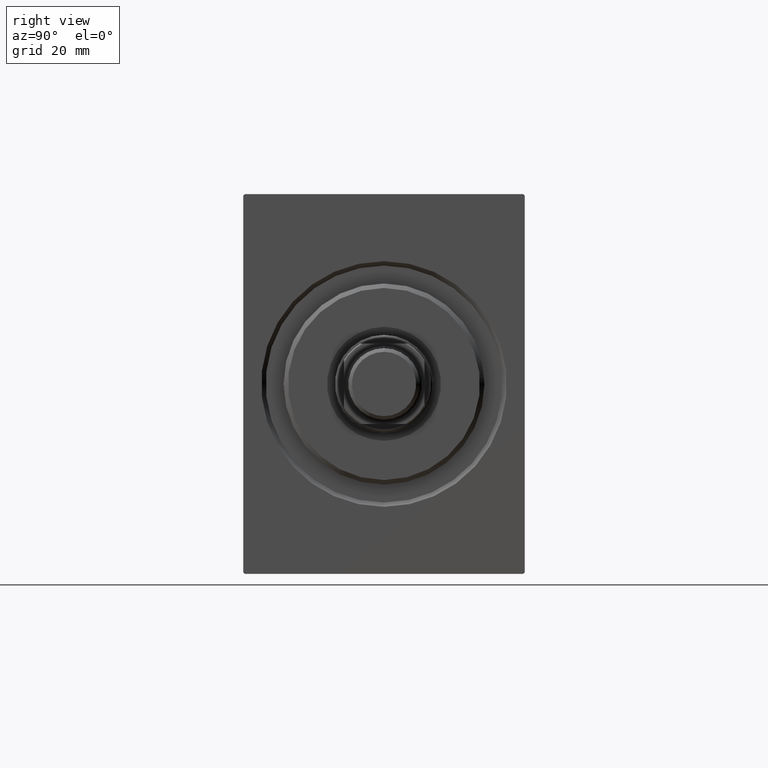
[diagram: clean part render]
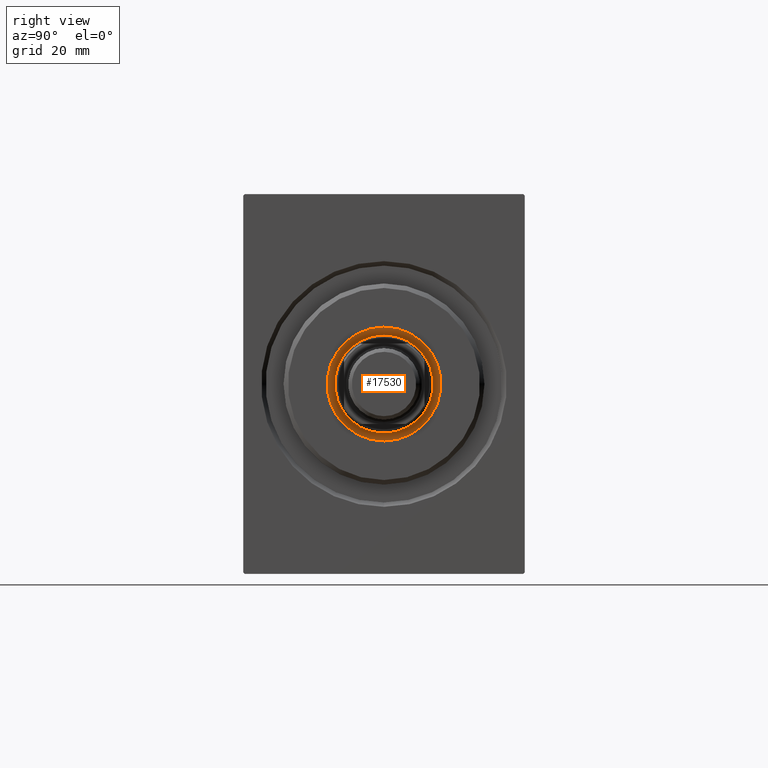
[diagram: same view with one face highlighted and labeled with its STEP entity id]
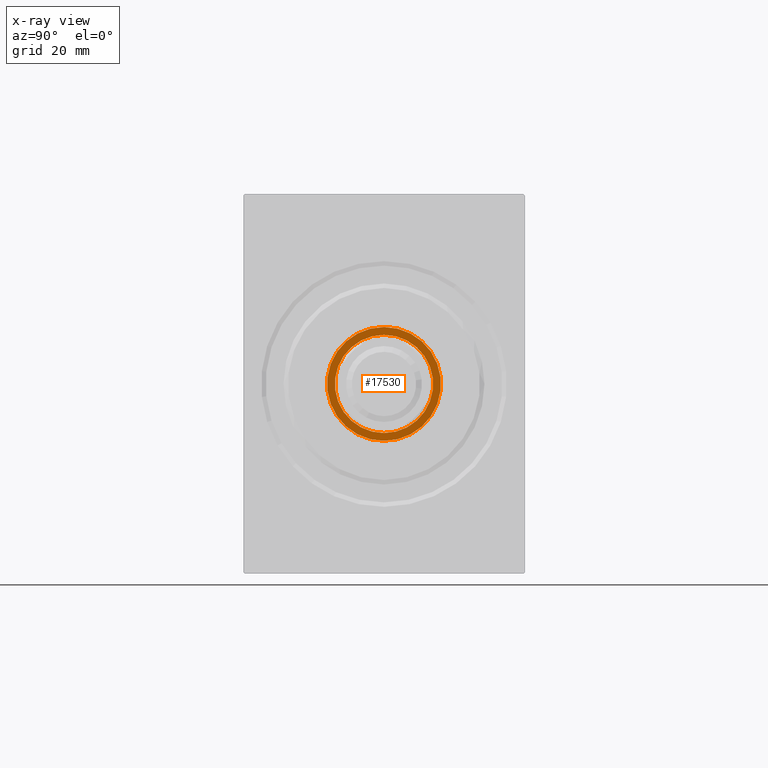
[diagram: x-ray of the same camera — body ghosted, the highlighted face saturated]
A machine part, right view. The second image highlights one B-rep face of the part: STEP entity #17530.
The next image is the same camera in x-ray: the body ghosted, the highlighted face saturated — about 0% of this face is hidden behind the body in this view.
In plain terms, the highlighted planar face has unit normal (1, 0, 0).
Its self-contained STEP definition (entity closure, byte-faithful):
#888 = CARTESIAN_POINT ( 'NONE',  ( 1.500000000000000000, 0.000000000000000000, 0.000000000000000000 ) ) ;
#4051 = DIRECTION ( 'NONE',  ( 1.000000000000000000, 0.000000000000000000, 0.000000000000000000 ) ) ;
#5470 = AXIS2_PLACEMENT_3D ( 'NONE', #888, #40809, #7249 ) ;
#7249 = DIRECTION ( 'NONE',  ( 0.000000000000000000, 0.000000000000000000, -1.000000000000000000 ) ) ;
#8992 = EDGE_LOOP ( 'NONE', ( #34751, #24453 ) ) ;
#9480 = DIRECTION ( 'NONE',  ( 0.000000000000000000, 0.000000000000000000, -1.000000000000000000 ) ) ;
#9494 = CIRCLE ( 'NONE', #17191, 11.00000000000000000 ) ;
#12304 = CIRCLE ( 'NONE', #15814, 11.00000000000000000 ) ;
#12972 = EDGE_CURVE ( 'NONE', #35174, #16367, #9494, .T. ) ;
#13670 = DIRECTION ( 'NONE',  ( 1.000000000000000000, 0.000000000000000000, 0.000000000000000000 ) ) ;
#13721 = DIRECTION ( 'NONE',  ( 0.000000000000000000, 0.000000000000000000, -1.000000000000000000 ) ) ;
#13892 = CARTESIAN_POINT ( 'NONE',  ( 1.500000000000000000, 0.000000000000000000, 0.000000000000000000 ) ) ;
#14360 = DIRECTION ( 'NONE',  ( 1.000000000000000000, 0.000000000000000000, 0.000000000000000000 ) ) ;
#15814 = AXIS2_PLACEMENT_3D ( 'NONE', #36444, #26571, #9480 ) ;
#16367 = VERTEX_POINT ( 'NONE', #19879 ) ;
#17191 = AXIS2_PLACEMENT_3D ( 'NONE', #17648, #4051, #13721 ) ;
#17389 = DIRECTION ( 'NONE',  ( 0.000000000000000000, 0.000000000000000000, -1.000000000000000000 ) ) ;
#17530 = ADVANCED_FACE ( 'NONE', ( #27721, #37804 ), #25078, .T. ) ;
#17648 = CARTESIAN_POINT ( 'NONE',  ( 1.500000000000001332, 0.000000000000000000, 0.000000000000000000 ) ) ;
#18070 = DIRECTION ( 'NONE',  ( 0.000000000000000000, 0.000000000000000000, -1.000000000000000000 ) ) ;
#19879 = CARTESIAN_POINT ( 'NONE',  ( 1.500000000000001332, 1.347111479062088207E-15, 11.00000000000000000 ) ) ;
#20652 = ORIENTED_EDGE ( 'NONE', *, *, #32829, .T. ) ;
#24453 = ORIENTED_EDGE ( 'NONE', *, *, #30944, .F. ) ;
#24485 = EDGE_LOOP ( 'NONE', ( #20652, #35540 ) ) ;
#25078 = PLANE ( 'NONE',  #30201 ) ;
#25565 = CARTESIAN_POINT ( 'NONE',  ( 1.500000000000000000, 1.561424668912874914E-15, -12.75000000000000000 ) ) ;
#26571 = DIRECTION ( 'NONE',  ( 1.000000000000000000, 0.000000000000000000, 0.000000000000000000 ) ) ;
#27721 = FACE_BOUND ( 'NONE', #8992, .T. ) ;
#30201 = AXIS2_PLACEMENT_3D ( 'NONE', #41108, #14360, #18070 ) ;
#30944 = EDGE_CURVE ( 'NONE', #16367, #35174, #12304, .T. ) ;
#31856 = CARTESIAN_POINT ( 'NONE',  ( 1.500000000000000000, 0.000000000000000000, 12.75000000000000000 ) ) ;
#32554 = AXIS2_PLACEMENT_3D ( 'NONE', #13892, #13670, #17389 ) ;
#32829 = EDGE_CURVE ( 'NONE', #42047, #35705, #36054, .T. ) ;
#34751 = ORIENTED_EDGE ( 'NONE', *, *, #12972, .F. ) ;
#35174 = VERTEX_POINT ( 'NONE', #37703 ) ;
#35540 = ORIENTED_EDGE ( 'NONE', *, *, #41271, .T. ) ;
#35705 = VERTEX_POINT ( 'NONE', #25565 ) ;
#36054 = CIRCLE ( 'NONE', #32554, 12.75000000000000000 ) ;
#36444 = CARTESIAN_POINT ( 'NONE',  ( 1.500000000000001332, 0.000000000000000000, 0.000000000000000000 ) ) ;
#37703 = CARTESIAN_POINT ( 'NONE',  ( 1.500000000000001332, 0.000000000000000000, -11.00000000000000000 ) ) ;
#37804 = FACE_OUTER_BOUND ( 'NONE', #24485, .T. ) ;
#40809 = DIRECTION ( 'NONE',  ( 1.000000000000000000, 0.000000000000000000, 0.000000000000000000 ) ) ;
#41108 = CARTESIAN_POINT ( 'NONE',  ( 1.500000000000000000, 0.000000000000000000, 0.000000000000000000 ) ) ;
#41271 = EDGE_CURVE ( 'NONE', #35705, #42047, #43311, .T. ) ;
#42047 = VERTEX_POINT ( 'NONE', #31856 ) ;
#43311 = CIRCLE ( 'NONE', #5470, 12.75000000000000000 ) ;